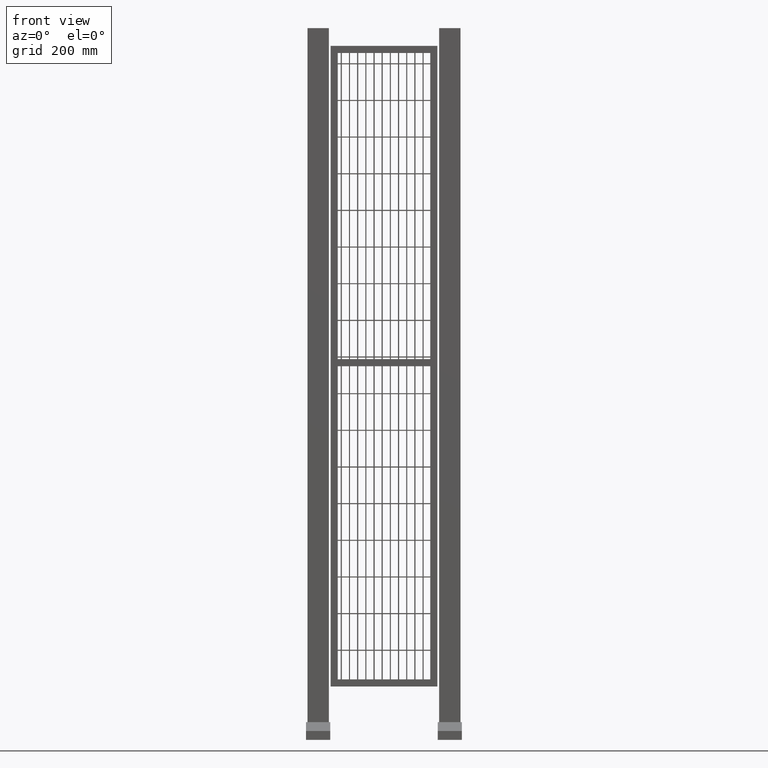
[diagram: clean part render]
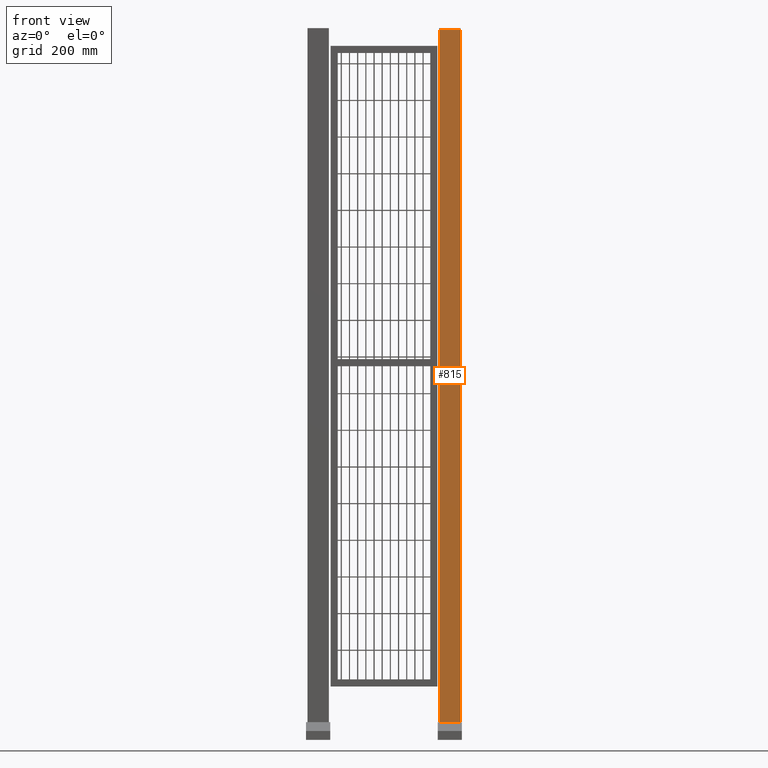
[diagram: same view with one face highlighted and labeled with its STEP entity id]
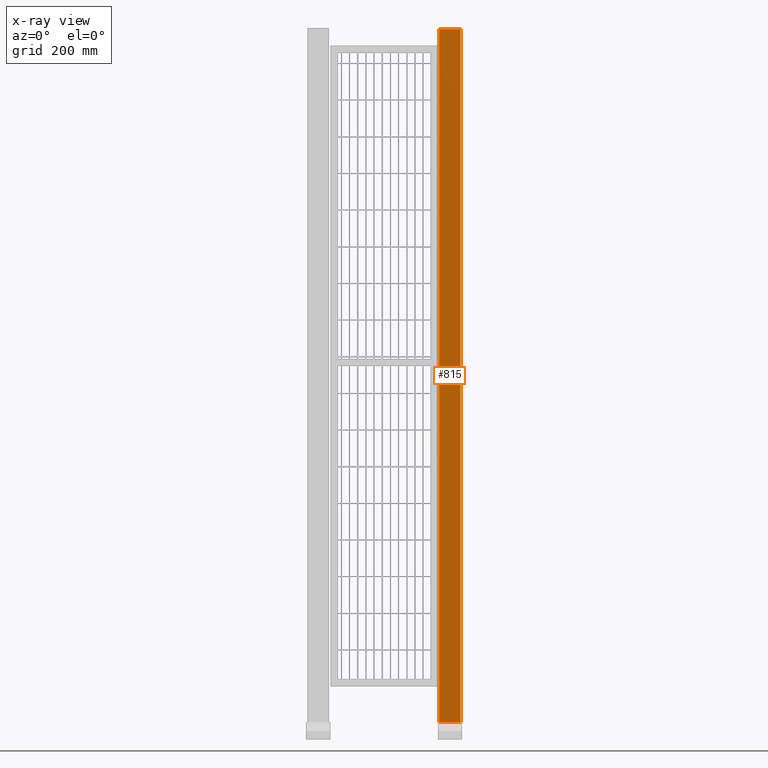
[diagram: x-ray of the same camera — body ghosted, the highlighted face saturated]
A machine part, front view. The second image highlights one B-rep face of the part: STEP entity #815.
The next image is the same camera in x-ray: the body ghosted, the highlighted face saturated — about 0% of this face is hidden behind the body in this view.
In plain terms, the highlighted planar face has unit normal (0, -1, 0).
Its self-contained STEP definition (entity closure, byte-faithful):
#128=LINE('',#2847,#222);
#129=LINE('',#2850,#223);
#130=LINE('',#2852,#224);
#131=LINE('',#2854,#225);
#222=VECTOR('',#2428,1.);
#223=VECTOR('',#2429,1.);
#224=VECTOR('',#2430,1.);
#225=VECTOR('',#2431,1.);
#600=PLANE('',#1977);
#689=FACE_OUTER_BOUND('',#1100,.T.);
#815=ADVANCED_FACE('',(#689),#600,.T.);
#1100=EDGE_LOOP('',(#1388,#1389,#1390,#1391));
#1388=ORIENTED_EDGE('',*,*,#1702,.F.);
#1389=ORIENTED_EDGE('',*,*,#1703,.F.);
#1390=ORIENTED_EDGE('',*,*,#1704,.T.);
#1391=ORIENTED_EDGE('',*,*,#1705,.T.);
#1548=VERTEX_POINT('',#2848);
#1549=VERTEX_POINT('',#2849);
#1550=VERTEX_POINT('',#2851);
#1551=VERTEX_POINT('',#2853);
#1702=EDGE_CURVE('',#1548,#1549,#128,.T.);
#1703=EDGE_CURVE('',#1550,#1548,#129,.T.);
#1704=EDGE_CURVE('',#1550,#1551,#130,.T.);
#1705=EDGE_CURVE('',#1551,#1549,#131,.T.);
#1977=AXIS2_PLACEMENT_3D('',#2855,#2432,#2433);
#2428=DIRECTION('',(0.,0.,-1.));
#2429=DIRECTION('',(0.,1.,0.));
#2430=DIRECTION('',(0.,0.,-1.));
#2431=DIRECTION('',(0.,1.,0.));
#2432=DIRECTION('',(1.,0.,0.));
#2433=DIRECTION('',(0.,0.,-1.));
#2847=CARTESIAN_POINT('',(30.,30.,1996.));
#2848=CARTESIAN_POINT('',(30.,30.,1996.));
#2849=CARTESIAN_POINT('',(30.,30.,50.));
#2850=CARTESIAN_POINT('',(30.,-30.,1996.));
#2851=CARTESIAN_POINT('',(30.,-30.,1996.));
#2852=CARTESIAN_POINT('',(30.,-30.,1996.));
#2853=CARTESIAN_POINT('',(30.,-30.,50.));
#2854=CARTESIAN_POINT('',(30.,-30.,50.));
#2855=CARTESIAN_POINT('',(30.,-30.,1996.));